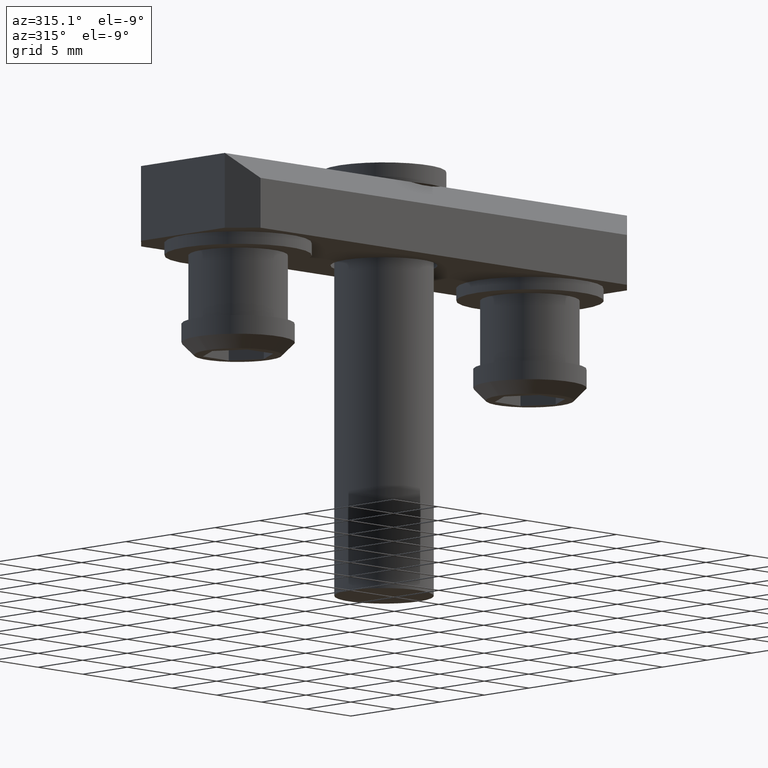
[diagram: clean part render]
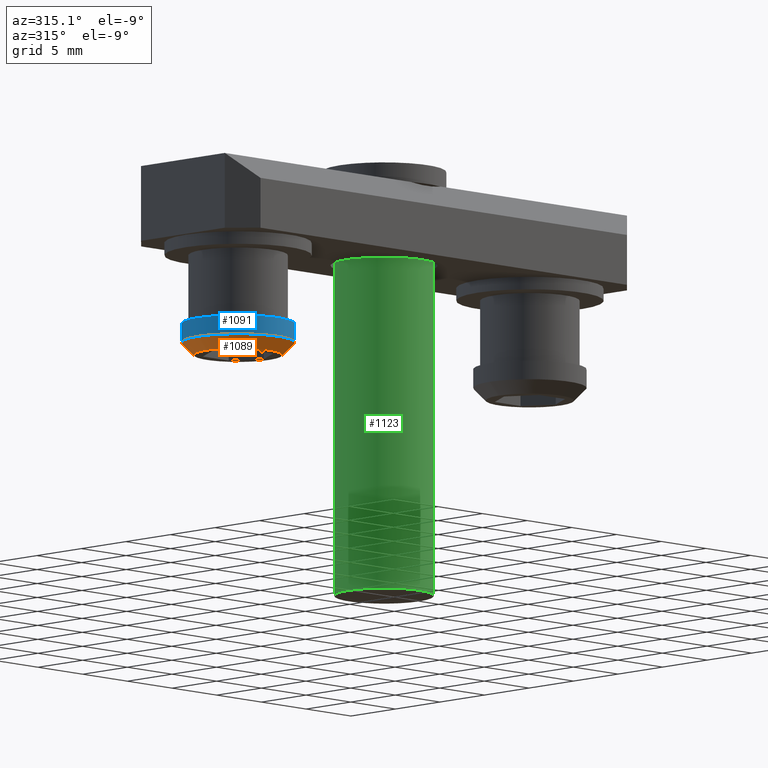
[diagram: same view with three faces highlighted in distinct colors, each labeled with its STEP entity id]
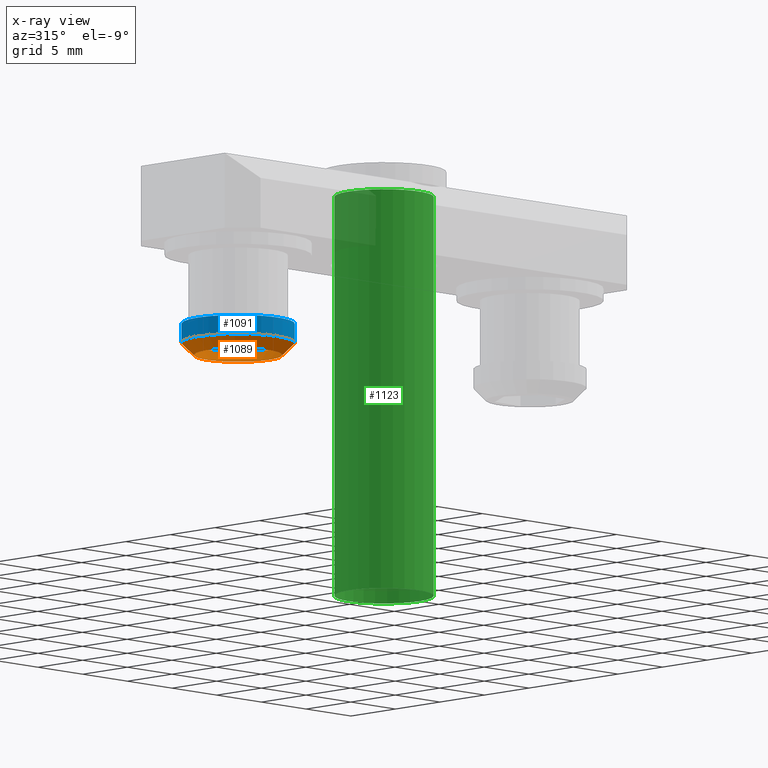
[diagram: x-ray of the same camera — body ghosted, the three highlighted faces saturated]
A machine part, auxiliary view with three faces highlighted in distinct colors.
The next image is the same camera in x-ray (body ghosted, the three faces saturated) — at least one of them is partly hidden behind the body in this view.
Their STEP definitions:

[orange] entity #1089 — the highlighted conical surface has half-angle 45 deg.
#31=CONICAL_SURFACE('',#1189,4.,0.785398163397449);
#103=FACE_OUTER_BOUND('',#166,.T.);
#166=EDGE_LOOP('',(#810,#811,#812,#813,#814));
#254=LINE('',#1701,#351);
#351=VECTOR('',#1389,4.);
#425=CIRCLE('',#1190,4.5);
#426=CIRCLE('',#1191,4.5);
#427=CIRCLE('',#1192,3.5);
#496=VERTEX_POINT('',#1696);
#497=VERTEX_POINT('',#1697);
#498=VERTEX_POINT('',#1700);
#615=EDGE_CURVE('',#496,#497,#425,.T.);
#616=EDGE_CURVE('',#497,#496,#426,.T.);
#617=EDGE_CURVE('',#496,#498,#254,.T.);
#618=EDGE_CURVE('',#498,#498,#427,.T.);
#810=ORIENTED_EDGE('',*,*,#615,.T.);
#811=ORIENTED_EDGE('',*,*,#616,.T.);
#812=ORIENTED_EDGE('',*,*,#617,.T.);
#813=ORIENTED_EDGE('',*,*,#618,.T.);
#814=ORIENTED_EDGE('',*,*,#617,.F.);
#1089=ADVANCED_FACE('',(#103),#31,.T.);
#1189=AXIS2_PLACEMENT_3D('',#1695,#1383,#1384);
#1190=AXIS2_PLACEMENT_3D('',#1698,#1385,#1386);
#1191=AXIS2_PLACEMENT_3D('',#1699,#1387,#1388);
#1192=AXIS2_PLACEMENT_3D('',#1702,#1390,#1391);
#1383=DIRECTION('center_axis',(0.,0.,1.));
#1384=DIRECTION('ref_axis',(1.,0.,0.));
#1385=DIRECTION('center_axis',(0.,0.,-1.));
#1386=DIRECTION('ref_axis',(1.,0.,0.));
#1387=DIRECTION('center_axis',(0.,0.,-1.));
#1388=DIRECTION('ref_axis',(1.,0.,0.));
#1389=DIRECTION('',(0.707106781186548,8.65956056235494E-17,-0.707106781186547));
#1390=DIRECTION('center_axis',(0.,0.,1.));
#1391=DIRECTION('ref_axis',(1.,0.,0.));
#1695=CARTESIAN_POINT('Origin',(-8.55551324335251,18.9327112716979,5.25470643910741));
#1696=CARTESIAN_POINT('',(-13.0555132433525,18.9327112716979,5.75470643910741));
#1697=CARTESIAN_POINT('',(-4.05551324335251,18.9327112716979,5.75470643910741));
#1698=CARTESIAN_POINT('Origin',(-8.55551324335251,18.9327112716979,5.75470643910741));
#1699=CARTESIAN_POINT('Origin',(-8.55551324335251,18.9327112716979,5.75470643910741));
#1700=CARTESIAN_POINT('',(-12.0555132433525,18.9327112716979,4.75470643910741));
#1701=CARTESIAN_POINT('',(-12.5555132433525,18.9327112716979,5.25470643910741));
#1702=CARTESIAN_POINT('Origin',(-8.55551324335251,18.9327112716979,4.75470643910741));

[blue] entity #1091 — the highlighted cylindrical surface (bore or boss wall) has radius 4.5 mm, axis along (0, 0, 1).
#105=FACE_OUTER_BOUND('',#169,.T.);
#169=EDGE_LOOP('',(#822,#823,#824,#825,#826,#827));
#255=LINE('',#1709,#352);
#352=VECTOR('',#1400,4.5);
#425=CIRCLE('',#1190,4.5);
#426=CIRCLE('',#1191,4.5);
#428=CIRCLE('',#1195,4.5);
#429=CIRCLE('',#1196,4.5);
#496=VERTEX_POINT('',#1696);
#497=VERTEX_POINT('',#1697);
#499=VERTEX_POINT('',#1705);
#500=VERTEX_POINT('',#1706);
#615=EDGE_CURVE('',#496,#497,#425,.T.);
#616=EDGE_CURVE('',#497,#496,#426,.T.);
#619=EDGE_CURVE('',#499,#500,#428,.T.);
#620=EDGE_CURVE('',#500,#499,#429,.T.);
#621=EDGE_CURVE('',#500,#497,#255,.T.);
#822=ORIENTED_EDGE('',*,*,#619,.F.);
#823=ORIENTED_EDGE('',*,*,#620,.F.);
#824=ORIENTED_EDGE('',*,*,#621,.T.);
#825=ORIENTED_EDGE('',*,*,#615,.F.);
#826=ORIENTED_EDGE('',*,*,#616,.F.);
#827=ORIENTED_EDGE('',*,*,#621,.F.);
#997=CYLINDRICAL_SURFACE('',#1194,4.5);
#1091=ADVANCED_FACE('',(#105),#997,.T.);
#1190=AXIS2_PLACEMENT_3D('',#1698,#1385,#1386);
#1191=AXIS2_PLACEMENT_3D('',#1699,#1387,#1388);
#1194=AXIS2_PLACEMENT_3D('',#1704,#1394,#1395);
#1195=AXIS2_PLACEMENT_3D('',#1707,#1396,#1397);
#1196=AXIS2_PLACEMENT_3D('',#1708,#1398,#1399);
#1385=DIRECTION('center_axis',(0.,0.,-1.));
#1386=DIRECTION('ref_axis',(1.,0.,0.));
#1387=DIRECTION('center_axis',(0.,0.,-1.));
#1388=DIRECTION('ref_axis',(1.,0.,0.));
#1394=DIRECTION('center_axis',(0.,0.,1.));
#1395=DIRECTION('ref_axis',(-1.,0.,0.));
#1396=DIRECTION('center_axis',(0.,0.,1.));
#1397=DIRECTION('ref_axis',(1.,0.,0.));
#1398=DIRECTION('center_axis',(0.,0.,1.));
#1399=DIRECTION('ref_axis',(1.,0.,0.));
#1400=DIRECTION('',(0.,0.,-1.));
#1696=CARTESIAN_POINT('',(-13.0555132433525,18.9327112716979,5.75470643910741));
#1697=CARTESIAN_POINT('',(-4.05551324335251,18.9327112716979,5.75470643910741));
#1698=CARTESIAN_POINT('Origin',(-8.55551324335251,18.9327112716979,5.75470643910741));
#1699=CARTESIAN_POINT('Origin',(-8.55551324335251,18.9327112716979,5.75470643910741));
#1704=CARTESIAN_POINT('Origin',(-8.55551324335251,18.9327112716979,6.00470643910741));
#1705=CARTESIAN_POINT('',(-13.0555132433525,18.9327112716979,7.25470643910741));
#1706=CARTESIAN_POINT('',(-4.05551324335251,18.9327112716979,7.25470643910741));
#1707=CARTESIAN_POINT('Origin',(-8.55551324335251,18.9327112716979,7.25470643910741));
#1708=CARTESIAN_POINT('Origin',(-8.55551324335251,18.9327112716979,7.25470643910741));
#1709=CARTESIAN_POINT('',(-4.05551324335251,18.9327112716979,6.00470643910741));

[green] entity #1123 — the highlighted cylindrical surface (bore or boss wall) has radius 3.95 mm, axis along (0, 0, -1).
#137=FACE_OUTER_BOUND('',#210,.T.);
#210=EDGE_LOOP('',(#984,#985,#986,#987,#988,#989));
#308=LINE('',#1876,#405);
#405=VECTOR('',#1563,3.95);
#449=CIRCLE('',#1246,3.94999999999999);
#450=CIRCLE('',#1247,3.94999999999999);
#451=CIRCLE('',#1250,3.95000000000001);
#452=CIRCLE('',#1251,3.95000000000001);
#550=VERTEX_POINT('',#1866);
#551=VERTEX_POINT('',#1867);
#552=VERTEX_POINT('',#1872);
#553=VERTEX_POINT('',#1873);
#695=EDGE_CURVE('',#550,#551,#449,.T.);
#696=EDGE_CURVE('',#551,#550,#450,.T.);
#697=EDGE_CURVE('',#552,#553,#451,.T.);
#698=EDGE_CURVE('',#553,#552,#452,.T.);
#699=EDGE_CURVE('',#553,#551,#308,.T.);
#984=ORIENTED_EDGE('',*,*,#697,.F.);
#985=ORIENTED_EDGE('',*,*,#698,.F.);
#986=ORIENTED_EDGE('',*,*,#699,.T.);
#987=ORIENTED_EDGE('',*,*,#696,.T.);
#988=ORIENTED_EDGE('',*,*,#695,.T.);
#989=ORIENTED_EDGE('',*,*,#699,.F.);
#1002=CYLINDRICAL_SURFACE('',#1249,3.95);
#1123=ADVANCED_FACE('',(#137),#1002,.T.);
#1246=AXIS2_PLACEMENT_3D('',#1868,#1551,#1552);
#1247=AXIS2_PLACEMENT_3D('',#1869,#1553,#1554);
#1249=AXIS2_PLACEMENT_3D('',#1871,#1557,#1558);
#1250=AXIS2_PLACEMENT_3D('',#1874,#1559,#1560);
#1251=AXIS2_PLACEMENT_3D('',#1875,#1561,#1562);
#1551=DIRECTION('center_axis',(0.,0.,-1.));
#1552=DIRECTION('ref_axis',(1.,0.,0.));
#1553=DIRECTION('center_axis',(0.,0.,-1.));
#1554=DIRECTION('ref_axis',(1.,0.,0.));
#1557=DIRECTION('center_axis',(0.,0.,-1.));
#1558=DIRECTION('ref_axis',(-1.,0.,0.));
#1559=DIRECTION('center_axis',(0.,0.,-1.));
#1560=DIRECTION('ref_axis',(1.,0.,0.));
#1561=DIRECTION('center_axis',(0.,0.,-1.));
#1562=DIRECTION('ref_axis',(1.,0.,0.));
#1563=DIRECTION('',(0.,0.,1.));
#1866=CARTESIAN_POINT('',(3.81948675664751,18.9327112716979,19.2547064391074));
#1867=CARTESIAN_POINT('',(11.7194867566475,18.9327112716979,19.2547064391074));
#1868=CARTESIAN_POINT('Origin',(7.7694867566475,18.9327112716979,19.2547064391074));
#1869=CARTESIAN_POINT('Origin',(7.7694867566475,18.9327112716979,19.2547064391074));
#1871=CARTESIAN_POINT('Origin',(7.7694867566475,18.9327112716979,3.25470643910741));
#1872=CARTESIAN_POINT('',(3.81948675664749,18.9327112716979,-12.7452935608926));
#1873=CARTESIAN_POINT('',(11.7194867566475,18.9327112716979,-12.7452935608926));
#1874=CARTESIAN_POINT('Origin',(7.7694867566475,18.9327112716979,-12.7452935608926));
#1875=CARTESIAN_POINT('Origin',(7.7694867566475,18.9327112716979,-12.7452935608926));
#1876=CARTESIAN_POINT('',(11.7194867566475,18.9327112716979,3.25470643910741));